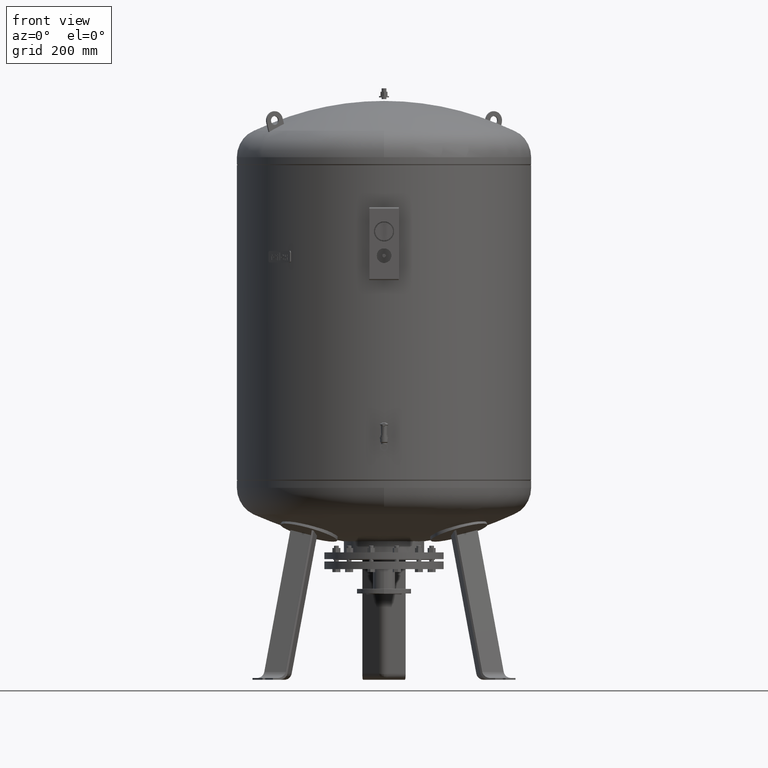
[diagram: clean part render]
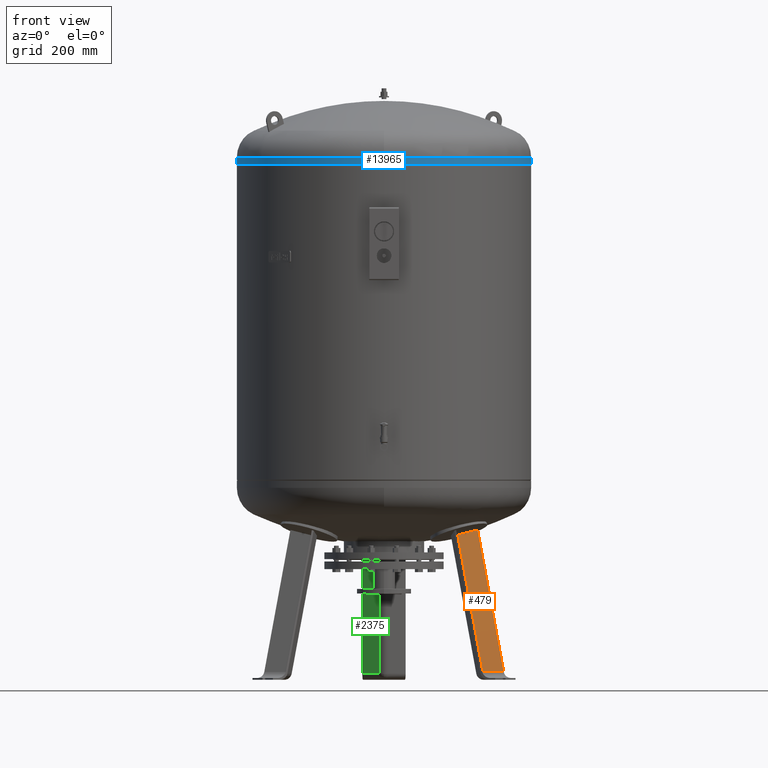
[diagram: same view with three faces highlighted in distinct colors, each labeled with its STEP entity id]
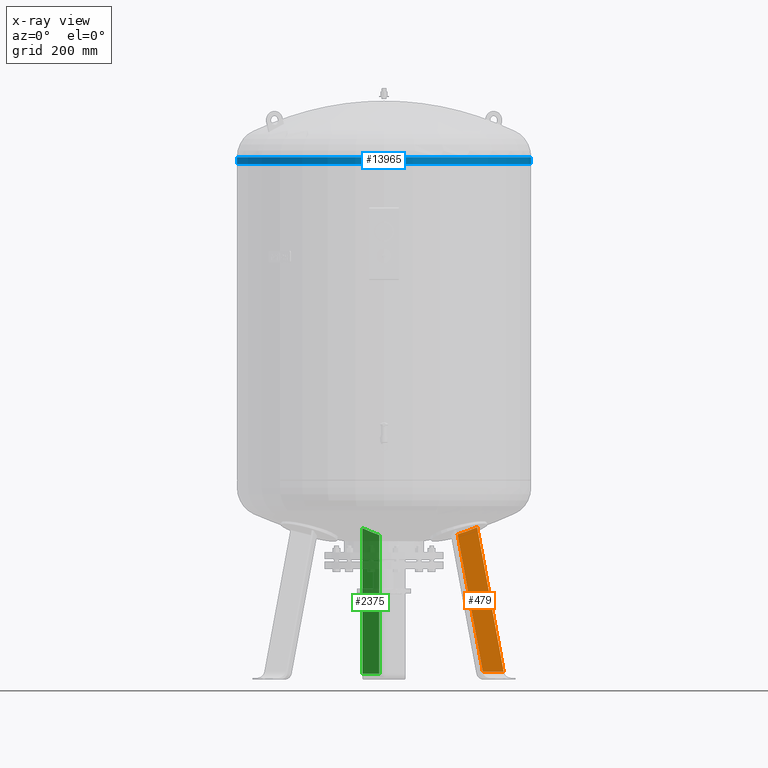
[diagram: x-ray of the same camera — body ghosted, the three highlighted faces saturated]
A machine part, front view with three faces highlighted in distinct colors.
The next image is the same camera in x-ray (body ghosted, the three faces saturated) — at least one of them is partly hidden behind the body in this view.
Their STEP definitions:

[orange] entity #479 — the highlighted planar face has unit normal (0.3243, -0.9325, 0.1588).
#242=CARTESIAN_POINT('',(249.970221641443120,-125.687606297124820,494.201352274706380));
#243=VERTEX_POINT('',#242);
#261=CARTESIAN_POINT('',(316.383325465202570,-98.558074843716298,517.895129107029220));
#262=VERTEX_POINT('',#261);
#263=CARTESIAN_POINT('',(316.383325465202570,-98.558074843716298,517.895129107029220));
#264=CARTESIAN_POINT('',(303.117631196989460,-104.097536684152030,512.454975054419490));
#265=CARTESIAN_POINT('',(289.791707998572520,-109.592030085972500,507.401880690415570));
#266=CARTESIAN_POINT('',(269.651122300431210,-117.784583518448970,500.420860589924870));
#267=CARTESIAN_POINT('',(262.833633261646360,-120.538302662904980,498.171859028428970));
#268=CARTESIAN_POINT('',(254.005066486513700,-124.076424747640690,495.423332669959050));
#269=CARTESIAN_POINT('',(251.987311040708960,-124.883150693000900,494.806356446810070));
#270=CARTESIAN_POINT('',(249.970221641443120,-125.687606297124820,494.201352274706380));
#271=B_SPLINE_CURVE_WITH_KNOTS('',3,(#263,#264,#265,#266,#267,#268,#269,#270),.UNSPECIFIED.,.F.,.U.,(4,2,2,4),(536.144034177567730,540.433260676197730,542.629325785795340,543.280185670864850),.UNSPECIFIED.);
#272=EDGE_CURVE('',#262,#243,#271,.T.);
#419=CARTESIAN_POINT('',(406.741484643137480,-150.726382368576200,27.029948423057281));
#420=VERTEX_POINT('',#419);
#421=CARTESIAN_POINT('',(406.741484643137480,-150.726382368576200,27.029948423057281));
#422=DIRECTION('',(-0.180056805991956,0.103955845408880,0.978147600733805));
#423=VECTOR('',#422,501.831400818981990);
#424=LINE('',#421,#423);
#425=EDGE_CURVE('',#420,#262,#424,.T.);
#456=CARTESIAN_POINT('',(424.185811883850870,-160.797869396833990,-67.735293817669458));
#457=DIRECTION('',(0.324282864533176,-0.932535537409927,0.158802063077709));
#458=DIRECTION('',(-0.180056805991956,0.103955845408880,0.978147600733806));
#459=AXIS2_PLACEMENT_3D('',#456,#457,#458);
#460=PLANE('',#459);
#461=CARTESIAN_POINT('',(335.966845019347490,-175.337779953756860,27.029948423057284));
#462=VERTEX_POINT('',#461);
#463=CARTESIAN_POINT('',(335.966845019347490,-175.337779953756860,27.029948423057284));
#464=DIRECTION('',(-0.180056805991955,0.103955845408880,0.978147600733806));
#465=VECTOR('',#464,477.608290917625770);
#466=LINE('',#463,#465);
#467=EDGE_CURVE('',#462,#243,#466,.T.);
#468=ORIENTED_EDGE('',*,*,#467,.F.);
#469=CARTESIAN_POINT('',(406.741484643137480,-150.726382368576200,27.029948423057281));
#470=DIRECTION('',(-0.944521094592692,-0.328450760190052,4.741265E-017));
#471=VECTOR('',#470,74.931772333057637);
#472=LINE('',#469,#471);
#473=EDGE_CURVE('',#420,#462,#472,.T.);
#474=ORIENTED_EDGE('',*,*,#473,.F.);
#475=ORIENTED_EDGE('',*,*,#425,.T.);
#476=ORIENTED_EDGE('',*,*,#272,.T.);
#477=EDGE_LOOP('',(#468,#474,#475,#476));
#478=FACE_OUTER_BOUND('',#477,.T.);
#479=ADVANCED_FACE('',(#478),#460,.T.);

[blue] entity #13965 — the highlighted cylindrical surface (partial cylindrical patch) has radius 500 mm, axis along (0, -0, -1).
#13242=CARTESIAN_POINT('',(500.0,-3.995410E-014,1751.500000000000000));
#13243=VERTEX_POINT('',#13242);
#13244=CARTESIAN_POINT('',(500.0,-3.553717E-014,1775.544644927280400));
#13245=VERTEX_POINT('',#13244);
#13246=CARTESIAN_POINT('',(500.0,-3.995410E-014,1751.500000000000000));
#13247=DIRECTION('',(0.0,0.0,1.0));
#13248=VECTOR('',#13247,24.044644927280387);
#13249=LINE('',#13246,#13248);
#13250=EDGE_CURVE('',#13243,#13245,#13249,.T.);
#13252=CARTESIAN_POINT('',(-500.0,2.127622E-014,1751.500000000000000));
#13253=VERTEX_POINT('',#13252);
#13261=CARTESIAN_POINT('',(-500.0,2.569315E-014,1775.544644927280400));
#13262=VERTEX_POINT('',#13261);
#13263=CARTESIAN_POINT('',(-500.0,2.127622E-014,1751.500000000000000));
#13264=DIRECTION('',(0.0,0.0,1.0));
#13265=VECTOR('',#13264,24.044644927280387);
#13266=LINE('',#13263,#13265);
#13267=EDGE_CURVE('',#13253,#13262,#13266,.T.);
#13356=CARTESIAN_POINT('',(-2.369145E-014,-500.000000000000060,1775.544644927280400));
#13357=VERTEX_POINT('',#13356);
#13367=CARTESIAN_POINT('',(2.260647E-015,-3.553717E-014,1775.544644927280400));
#13368=DIRECTION('',(0.0,0.0,-1.0));
#13369=DIRECTION('',(1.0,0.0,0.0));
#13370=AXIS2_PLACEMENT_3D('',#13367,#13368,#13369);
#13371=CIRCLE('',#13370,500.0);
#13372=EDGE_CURVE('',#13245,#13357,#13371,.T.);
#13711=CARTESIAN_POINT('',(2.260647E-015,-3.553717E-014,1775.544644927280400));
#13712=DIRECTION('',(0.0,0.0,-1.0));
#13713=DIRECTION('',(1.0,0.0,0.0));
#13714=AXIS2_PLACEMENT_3D('',#13711,#13712,#13713);
#13715=CIRCLE('',#13714,500.0);
#13716=EDGE_CURVE('',#13357,#13262,#13715,.T.);
#13947=CARTESIAN_POINT('',(2.401136E-015,-3.774564E-014,1763.522322463640200));
#13948=DIRECTION('',(1.168563E-017,-1.836970E-016,-1.0));
#13949=DIRECTION('',(1.0,0.0,0.0));
#13950=AXIS2_PLACEMENT_3D('',#13947,#13948,#13949);
#13951=CYLINDRICAL_SURFACE('',#13950,500.0);
#13952=ORIENTED_EDGE('',*,*,#13250,.T.);
#13953=ORIENTED_EDGE('',*,*,#13372,.T.);
#13954=ORIENTED_EDGE('',*,*,#13716,.T.);
#13955=ORIENTED_EDGE('',*,*,#13267,.F.);
#13956=CARTESIAN_POINT('',(2.541624E-015,-3.995410E-014,1751.500000000000000));
#13957=DIRECTION('',(0.0,0.0,-1.0));
#13958=DIRECTION('',(1.0,0.0,0.0));
#13959=AXIS2_PLACEMENT_3D('',#13956,#13957,#13958);
#13960=CIRCLE('',#13959,500.0);
#13961=EDGE_CURVE('',#13243,#13253,#13960,.T.);
#13962=ORIENTED_EDGE('',*,*,#13961,.F.);
#13963=EDGE_LOOP('',(#13952,#13953,#13954,#13955,#13962));
#13964=FACE_OUTER_BOUND('',#13963,.T.);
#13965=ADVANCED_FACE('',(#13964),#13951,.T.);

[green] entity #2375 — the highlighted planar face has unit normal (-0.6455, -0.7471, -0.1588).
#2162=CARTESIAN_POINT('',(-16.136450826554530,371.970961811045530,21.029948423057281));
#2163=VERTEX_POINT('',#2162);
#2236=CARTESIAN_POINT('',(-73.500000000000071,316.529968118506930,515.016008075238010));
#2237=VERTEX_POINT('',#2236);
#2245=CARTESIAN_POINT('',(-16.136450826554579,272.008950083506190,491.314238600476020));
#2246=VERTEX_POINT('',#2245);
#2247=CARTESIAN_POINT('',(-16.136450826554579,272.008950083506190,491.314238600476020));
#2248=CARTESIAN_POINT('',(-18.913416046005516,274.201624997825430,492.285612555272960));
#2249=CARTESIAN_POINT('',(-21.696926014053570,276.393125731170930,493.289112018364160));
#2250=CARTESIAN_POINT('',(-30.188304126259379,283.060881804885750,496.433369218256590));
#2251=CARTESIAN_POINT('',(-35.915460153680854,287.534026193424320,498.667159290237410));
#2252=CARTESIAN_POINT('',(-52.229069748678519,300.213795592267390,505.320924596915400));
#2253=CARTESIAN_POINT('',(-62.858036945115778,308.401818457782720,510.001214573362460));
#2254=CARTESIAN_POINT('',(-73.500000000000071,316.529968118506930,515.016008075238010));
#2255=B_SPLINE_CURVE_WITH_KNOTS('',3,(#2247,#2248,#2249,#2250,#2251,#2252,#2253,#2254),.UNSPECIFIED.,.F.,.U.,(4,2,2,4),(5.453253502265779,6.515864870681246,8.687819827574995,12.681292855444173),.UNSPECIFIED.);
#2256=EDGE_CURVE('',#2246,#2237,#2255,.T.);
#2325=CARTESIAN_POINT('',(-16.136450826554579,272.008950083506190,491.314238600476020));
#2326=DIRECTION('',(1.034504E-016,0.207911690817760,-0.978147600733805));
#2327=VECTOR('',#2326,480.790720975660350);
#2328=LINE('',#2325,#2327);
#2329=EDGE_CURVE('',#2246,#2163,#2328,.T.);
#2352=CARTESIAN_POINT('',(4.378504E-015,376.897581157592530,-67.735293817669458));
#2353=DIRECTION('',(-0.645458033062182,-0.747104967402682,-0.158802063077709));
#2354=DIRECTION('',(8.911644E-017,0.207911690817760,-0.978147600733806));
#2355=AXIS2_PLACEMENT_3D('',#2352,#2353,#2354);
#2356=PLANE('',#2355);
#2357=CARTESIAN_POINT('',(-73.500000000000014,421.529946471096990,21.029948423057284));
#2358=VERTEX_POINT('',#2357);
#2359=CARTESIAN_POINT('',(-73.500000000000014,421.529946471096990,21.029948423057284));
#2360=DIRECTION('',(-1.125563E-016,-0.207911690817760,0.978147600733806));
#2361=VECTOR('',#2360,505.022002079842250);
#2362=LINE('',#2359,#2361);
#2363=EDGE_CURVE('',#2358,#2237,#2362,.T.);
#2364=ORIENTED_EDGE('',*,*,#2363,.F.);
#2365=CARTESIAN_POINT('',(-16.136450826554530,371.970961811045530,21.029948423057281));
#2366=DIRECTION('',(-0.756707249513243,0.653753882232529,4.686537E-017));
#2367=VECTOR('',#2366,75.806792138366561);
#2368=LINE('',#2365,#2367);
#2369=EDGE_CURVE('',#2163,#2358,#2368,.T.);
#2370=ORIENTED_EDGE('',*,*,#2369,.F.);
#2371=ORIENTED_EDGE('',*,*,#2329,.F.);
#2372=ORIENTED_EDGE('',*,*,#2256,.T.);
#2373=EDGE_LOOP('',(#2364,#2370,#2371,#2372));
#2374=FACE_OUTER_BOUND('',#2373,.T.);
#2375=ADVANCED_FACE('',(#2374),#2356,.T.);